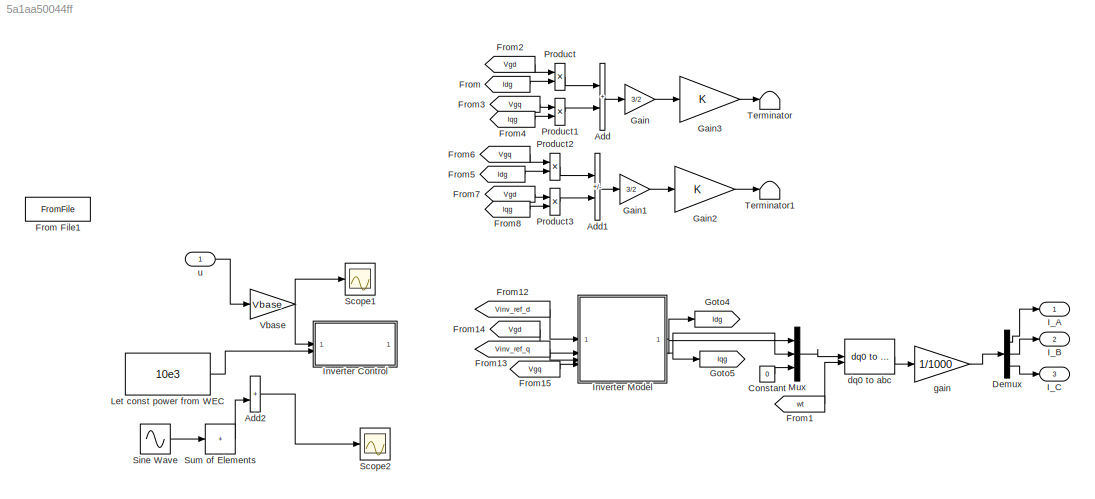
MODEL slx_5a1aa50044ff
KIND model
CONFIG AbsTol = auto
CONFIG EnableMultiTasking = off
CONFIG FixedStep = 50e-6
CONFIG InitFcn = load('Pgridwec.mat')\nLg=0.05;\nrg=0.01;\nkp_g=0.5*10.9;\nki_g=0.1*7.9e4;\nSbase=100e6;\nImax=1.5;\nVbase=132e3;\nIbase=5248.639;
CONFIG MaxStep = auto
CONFIG MinStep = auto
CONFIG RelTol = 1e-3
CONFIG SampleTimeConstraint = Unconstrained
CONFIG SolverName = ode4
CONFIG StartTime = 0.0
CONFIG StopTime = 20
BLOCK [Sum] Add
  IconShape = rectangular
BLOCK [Sum] Add1
  IconShape = rectangular
  Inputs = -+
BLOCK [Sum] Add2
  IconShape = rectangular
BLOCK [Constant] Constant
  Value = 0
BLOCK [Demux] Demux
  Outputs = 3
BLOCK [From] From
  GotoTag = Idg
  TagVisibility = global
BLOCK [FromFile] From File1
  Commented = on
  FileName = Pgridwec
  SampleTime = 0
BLOCK [From] From1
  GotoTag = wt
  TagVisibility = global
BLOCK [From] From12
  GotoTag = Vinv_ref_d
  TagVisibility = global
BLOCK [From] From13
  GotoTag = Vinv_ref_q
  TagVisibility = global
BLOCK [From] From14
  GotoTag = Vgd
  TagVisibility = global
BLOCK [From] From15
  GotoTag = Vgq
  TagVisibility = global
BLOCK [From] From2
  GotoTag = Vgd
  TagVisibility = global
BLOCK [From] From3
  GotoTag = Vgq
  TagVisibility = global
BLOCK [From] From4
  GotoTag = Iqg
  TagVisibility = global
BLOCK [From] From5
  GotoTag = Idg
  TagVisibility = global
BLOCK [From] From6
  GotoTag = Vgq
  TagVisibility = global
BLOCK [From] From7
  GotoTag = Vgd
  TagVisibility = global
BLOCK [From] From8
  GotoTag = Iqg
  TagVisibility = global
BLOCK [Gain] Gain
  Gain = 3/2
BLOCK [Gain] Gain1
  Gain = 3/2
BLOCK [Gain] Gain2
BLOCK [Gain] Gain3
BLOCK [Goto] Goto4
  GotoTag = Idg
  TagVisibility = global
BLOCK [Goto] Goto5
  GotoTag = Iqg
  TagVisibility = global
BLOCK [Outport] I_A
BLOCK [Outport] I_B
  Port = 2
BLOCK [Outport] I_C
  Port = 3
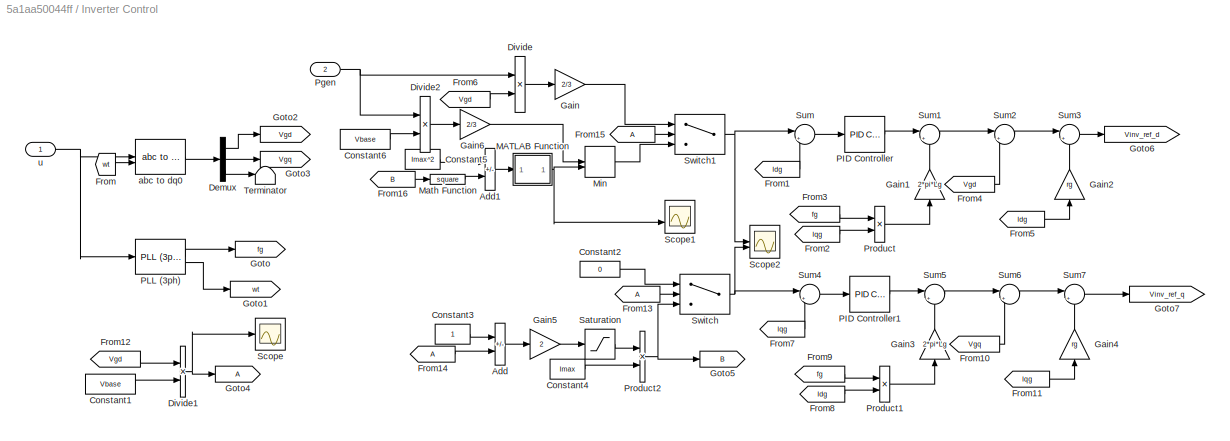
BLOCK [SubSystem] Inverter Control
BLOCK [Sum] Inverter Control/Add
  IconShape = rectangular
  Inputs = +-
BLOCK [Sum] Inverter Control/Add1
  IconShape = rectangular
  Inputs = +-
BLOCK [Constant] Inverter Control/Constant1
  Value = Vbase
BLOCK [Constant] Inverter Control/Constant2
  Value = 0
BLOCK [Constant] Inverter Control/Constant3
BLOCK [Constant] Inverter Control/Constant4
  Value = Imax
BLOCK [Constant] Inverter Control/Constant5
  Value = Imax^2
BLOCK [Constant] Inverter Control/Constant6
  Value = Vbase
BLOCK [Demux] Inverter Control/Demux
  Outputs = 3
BLOCK [Product] Inverter Control/Divide
  Inputs = */
BLOCK [Product] Inverter Control/Divide1
  Inputs = */
BLOCK [Product] Inverter Control/Divide2
  Inputs = */
BLOCK [From] Inverter Control/From
  GotoTag = wt
  TagVisibility = global
BLOCK [From] Inverter Control/From1
  GotoTag = Idg
  TagVisibility = global
BLOCK [From] Inverter Control/From10
  GotoTag = Vgq
  TagVisibility = global
BLOCK [From] Inverter Control/From11
  GotoTag = Iqg
  TagVisibility = global
BLOCK [From] Inverter Control/From12
  GotoTag = Vgd
  TagVisibility = global
BLOCK [From] Inverter Control/From13
BLOCK [From] Inverter Control/From14
BLOCK [From] Inverter Control/From15
BLOCK [From] Inverter Control/From16
  GotoTag = B
BLOCK [From] Inverter Control/From2
  GotoTag = Iqg
  TagVisibility = global
BLOCK [From] Inverter Control/From3
  GotoTag = fg
  TagVisibility = global
BLOCK [From] Inverter Control/From4
  GotoTag = Vgd
  TagVisibility = global
BLOCK [From] Inverter Control/From5
  GotoTag = Idg
  TagVisibility = global
BLOCK [From] Inverter Control/From6
  GotoTag = Vgd
  TagVisibility = global
BLOCK [From] Inverter Control/From7
  GotoTag = Iqg
  TagVisibility = global
BLOCK [From] Inverter Control/From8
  GotoTag = Idg
  TagVisibility = global
BLOCK [From] Inverter Control/From9
  GotoTag = fg
  TagVisibility = global
BLOCK [Gain] Inverter Control/Gain
  Gain = 2/3
BLOCK [Gain] Inverter Control/Gain1
  Gain = 2*pi*Lg
  NameLocation = right
BLOCK [Gain] Inverter Control/Gain2
  Gain = rg
  NameLocation = right
BLOCK [Gain] Inverter Control/Gain3
  Gain = 2*pi*Lg
  NameLocation = right
BLOCK [Gain] Inverter Control/Gain4
  Gain = rg
  NameLocation = right
BLOCK [Gain] Inverter Control/Gain5
  Gain = 2
BLOCK [Gain] Inverter Control/Gain6
  Gain = 2/3
BLOCK [Goto] Inverter Control/Goto
  GotoTag = fg
  TagVisibility = global
BLOCK [Goto] Inverter Control/Goto1
  GotoTag = wt
  TagVisibility = global
BLOCK [Goto] Inverter Control/Goto2
  GotoTag = Vgd
  TagVisibility = global
BLOCK [Goto] Inverter Control/Goto3
  GotoTag = Vgq
  TagVisibility = global
BLOCK [Goto] Inverter Control/Goto4
BLOCK [Goto] Inverter Control/Goto5
  GotoTag = B
BLOCK [Goto] Inverter Control/Goto6
  GotoTag = Vinv_ref_d
  TagVisibility = global
BLOCK [Goto] Inverter Control/Goto7
  GotoTag = Vinv_ref_q
  TagVisibility = global
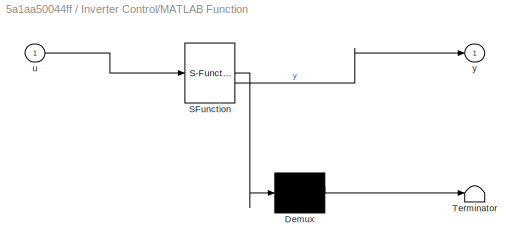
BLOCK [SubSystem] Inverter Control/MATLAB Function
  ErrorFcn = Stateflow.Translate.translate
  PermitHierarchicalResolution = ExplicitOnly
  SFBlockType = MATLAB Function
  TreatAsAtomicUnit = on
BLOCK [Demux] Inverter Control/MATLAB Function/ Demux 
  Outputs = 1
BLOCK [S-Function] Inverter Control/MATLAB Function/ SFunction 
  EnableBusSupport = on
  FunctionName = sf_sfun
  PortCounts = [1 2]
  SFcnIsStateOwnerBlock = off
  SFunctionDeploymentMode = off
  Tag = Stateflow S-Function 2
BLOCK [Terminator] Inverter Control/MATLAB Function/ Terminator 
BLOCK [Inport] Inverter Control/MATLAB Function/u
BLOCK [Outport] Inverter Control/MATLAB Function/y
BLOCK [Math] Inverter Control/Math Function
  Operator = square
BLOCK [MinMax] Inverter Control/Min
  Inputs = 2
BLOCK [Reference] Inverter Control/PID Controller  REF=slpidlib/PID Controller
  LibrarySourceBlock = simulink/Continuous/PID Controller
  SourceBlock = slpidlib/PID Controller
  SourceType = PID 1dof
BLOCK [Reference] Inverter Control/PID Controller1  REF=slpidlib/PID Controller
  LibrarySourceBlock = simulink/Continuous/PID Controller
  SourceBlock = slpidlib/PID Controller
  SourceType = PID 1dof
BLOCK [Reference] Inverter Control/PLL (3ph)  REF=spsPLL3phLib/PLL
(3ph)
  LibrarySourceBlock = sps_lib/Control/PLL\n(3ph)
  SourceBlock = spsPLL3phLib/PLL\n(3ph)
  SourceType = PLL (3ph)
BLOCK [Inport] Inverter Control/Pgen
  Port = 2
BLOCK [Product] Inverter Control/Product
BLOCK [Product] Inverter Control/Product1
BLOCK [Product] Inverter Control/Product2
BLOCK [Saturate] Inverter Control/Saturation
  LowerLimit = 0
  UpperLimit = 1
BLOCK [Scope] Inverter Control/Scope
  Floating = off
  NumInputPorts = 1
  ScopeSpecificationString = Simulink.scopes.TimeScopeBlockCfg('CurrentConfiguration', extmgr.ConfigurationSet(extmgr.Configuration('Core','General UI',true),extmgr.Configuration('Core','Source UI',true),extmgr.Configuration('Sources','WiredSimulink',true,'DataLoggingVariableName','ScopeData5'),extmgr.Configuration('Visuals','Time Domain',true,'SerializedDisplays',{struct('MinYLimReal','0.325','MaxYLimReal','1.075','YLabelRea...<+1390ch>
BLOCK [Scope] Inverter Control/Scope1
  Floating = off
  NumInputPorts = 2
  ScopeSpecificationString = Simulink.scopes.TimeScopeBlockCfg('CurrentConfiguration', extmgr.ConfigurationSet(extmgr.Configuration('Core','General UI',true),extmgr.Configuration('Core','Source UI',true),extmgr.Configuration('Sources','WiredSimulink',true,'DataLoggingVariableName','ScopeData7'),extmgr.Configuration('Visuals','Time Domain',true,'SerializedDisplays',{struct('MinYLimReal','-0.19959','MaxYLimReal','1.79629','YLab...<+1416ch>
BLOCK [Scope] Inverter Control/Scope2
  Floating = off
  NumInputPorts = 2
  ScopeSpecificationString = Simulink.scopes.TimeScopeBlockCfg('CurrentConfiguration', extmgr.ConfigurationSet(extmgr.Configuration('Core','General UI',true),extmgr.Configuration('Core','Source UI',true),extmgr.Configuration('Sources','WiredSimulink',true,'DataLoggingVariableName','ScopeData8'),extmgr.Configuration('Visuals','Time Domain',true,'SerializedDisplays',{struct('MinYLimReal','-0.20625','MaxYLimReal','1.85625','YLab...<+1416ch>
BLOCK [Sum] Inverter Control/Sum
  Inputs = |+-
BLOCK [Sum] Inverter Control/Sum1
  Inputs = |++
BLOCK [Sum] Inverter Control/Sum2
  Inputs = |++
BLOCK [Sum] Inverter Control/Sum3
  Inputs = |++
BLOCK [Sum] Inverter Control/Sum4
  Inputs = |+-
BLOCK [Sum] Inverter Control/Sum5
  Inputs = |++
BLOCK [Sum] Inverter Control/Sum6
  Inputs = |++
BLOCK [Sum] Inverter Control/Sum7
  Inputs = |++
BLOCK [Switch] Inverter Control/Switch
  Criteria = u2 > Threshold
  InputSameDT = off
  SaturateOnIntegerOverflow = off
  Threshold = 0.9
BLOCK [Switch] Inverter Control/Switch1
  Criteria = u2 > Threshold
  InputSameDT = off
  SaturateOnIntegerOverflow = off
  Threshold = 0.9
BLOCK [Terminator] Inverter Control/Terminator
BLOCK [Reference] Inverter Control/abc to dq0  REF=spsabctodq0Lib/abc to dq0
  LibrarySourceBlock = sps_lib/Control/abc to dq0
  SourceBlock = spsabctodq0Lib/abc to dq0
  SourceType = abc to dq0 Transformation
BLOCK [Inport] Inverter Control/u
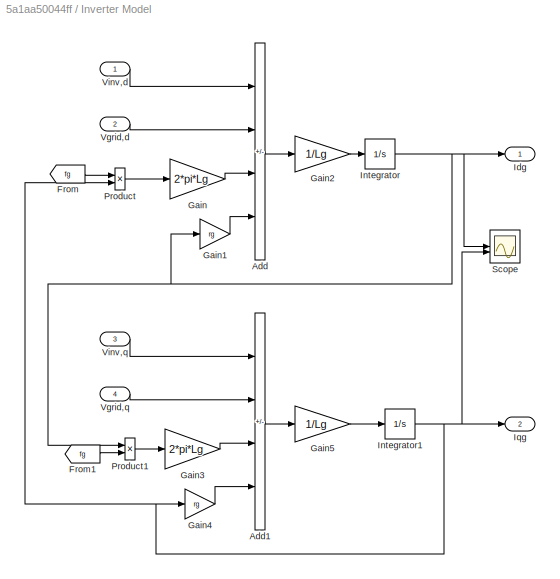
BLOCK [SubSystem] Inverter Model
BLOCK [Sum] Inverter Model/Add
  IconShape = rectangular
  Inputs = +---
BLOCK [Sum] Inverter Model/Add1
  IconShape = rectangular
  Inputs = +-+-
BLOCK [From] Inverter Model/From
  GotoTag = fg
  TagVisibility = global
BLOCK [From] Inverter Model/From1
  GotoTag = fg
  TagVisibility = global
BLOCK [Gain] Inverter Model/Gain
  Gain = 2*pi*Lg
BLOCK [Gain] Inverter Model/Gain1
  Gain = rg
BLOCK [Gain] Inverter Model/Gain2
  Gain = 1/Lg
BLOCK [Gain] Inverter Model/Gain3
  Gain = 2*pi*Lg
BLOCK [Gain] Inverter Model/Gain4
  Gain = rg
BLOCK [Gain] Inverter Model/Gain5
  Gain = 1/Lg
BLOCK [Outport] Inverter Model/Idg
BLOCK [Integrator] Inverter Model/Integrator
BLOCK [Integrator] Inverter Model/Integrator1
  InitialCondition = 0.015
BLOCK [Outport] Inverter Model/Iqg
  Port = 2
BLOCK [Product] Inverter Model/Product
BLOCK [Product] Inverter Model/Product1
BLOCK [Scope] Inverter Model/Scope
  Floating = off
  NumInputPorts = 2
  ScopeSpecificationString = Simulink.scopes.TimeScopeBlockCfg('CurrentConfiguration', extmgr.ConfigurationSet(extmgr.Configuration('Core','General UI',true),extmgr.Configuration('Core','Source UI',true),extmgr.Configuration('Sources','WiredSimulink',true,'DataLoggingVariableName','ScopeData3'),extmgr.Configuration('Visuals','Time Domain',true,'SerializedDisplays',{struct('MinYLimReal','-261.88407','MaxYLimReal','534.15379','...<+1553ch>
BLOCK [Inport] Inverter Model/Vgrid,d
  Port = 2
BLOCK [Inport] Inverter Model/Vgrid,q
  Port = 4
BLOCK [Inport] Inverter Model/Vinv,d
BLOCK [Inport] Inverter Model/Vinv,q
  Port = 3
BLOCK [Constant] Let const power from WEC
  Value = 10e3
BLOCK [Mux] Mux
  DisplayOption = bar
  Inputs = 3
BLOCK [Product] Product
BLOCK [Product] Product1
BLOCK [Product] Product2
BLOCK [Product] Product3
BLOCK [Scope] Scope1
  Floating = off
  NumInputPorts = 1
  ScopeSpecificationString = Simulink.scopes.TimeScopeBlockCfg('CurrentConfiguration', extmgr.ConfigurationSet(extmgr.Configuration('Core','General UI',true),extmgr.Configuration('Core','Source UI',true),extmgr.Configuration('Sources','WiredSimulink',true,'DataLoggingVariableName','ScopeData2'),extmgr.Configuration('Visuals','Time Domain',true,'SerializedDisplays',{struct('MinYLimReal','-1.00000','MaxYLimReal','1.00000','YLab...<+1415ch>
BLOCK [Scope] Scope2
  Floating = off
  NumInputPorts = 1
  ScopeSpecificationString = Simulink.scopes.TimeScopeBlockCfg('CurrentConfiguration', extmgr.ConfigurationSet(extmgr.Configuration('Core','General UI',true),extmgr.Configuration('Core','Source UI',true),extmgr.Configuration('Sources','WiredSimulink',true,'DataLoggingVariableName','ScopeData1'),extmgr.Configuration('Visuals','Time Domain',true,'SerializedDisplays',{struct('MinYLimReal','9999.96966','MaxYLimReal','10000.02965'...<+1438ch>
BLOCK [Sin] Sine Wave
  Amplitude = 0
  Frequency = [2*pi/3 2*pi/5 2*pi/7]
  Phase = [0,-2*pi/3, 2*pi/3]
  SampleTime = 0
BLOCK [Sum] Sum of Elements
  IconShape = rectangular
  Inputs = +
BLOCK [Terminator] Terminator
BLOCK [Terminator] Terminator1
BLOCK [Gain] Vbase
  Gain = Vbase
BLOCK [Reference] dq0 to abc  REF=spsdq0toabcLib/dq0 to abc
  LibrarySourceBlock = sps_lib/Control/dq0 to abc
  SourceBlock = spsdq0toabcLib/dq0 to abc
  SourceType = dq0 to abc Transformation
BLOCK [Gain] gain
  Gain = 1/1000
BLOCK [Inport] u
LINE Add1:1 -> Gain1:1
LINE Add2:1 -> Scope2:1
LINE Add:1 -> Gain:1
LINE Constant:1 -> Mux:3
LINE Demux:1 -> I_A:1
LINE Demux:2 -> I_B:1
LINE Demux:3 -> I_C:1
LINE From12:1 -> Inverter Model:1
LINE From13:1 -> Inverter Model:3
LINE From14:1 -> Inverter Model:2
LINE From15:1 -> Inverter Model:4
LINE From1:1 -> dq0 to abc:2
LINE From2:1 -> Product:1
LINE From3:1 -> Product1:1
LINE From4:1 -> Product1:2
LINE From5:1 -> Product2:2
LINE From6:1 -> Product2:1
LINE From7:1 -> Product3:1
LINE From8:1 -> Product3:2
LINE From:1 -> Product:2
LINE Gain1:1 -> Gain2:1
LINE Gain2:1 -> Terminator1:1
LINE Gain3:1 -> Terminator:1
LINE Gain:1 -> Gain3:1
LINE Inverter Control/Add1:1 -> Inverter Control/MATLAB Function:1
LINE Inverter Control/Add:1 -> Inverter Control/Gain5:1
LINE Inverter Control/Constant1:1 -> Inverter Control/Divide1:2
LINE Inverter Control/Constant2:1 -> Inverter Control/Switch:1
LINE Inverter Control/Constant3:1 -> Inverter Control/Add:1
LINE Inverter Control/Constant4:1 -> Inverter Control/Product2:2
LINE Inverter Control/Constant5:1 -> Inverter Control/Add1:1
LINE Inverter Control/Constant6:1 -> Inverter Control/Divide2:2
LINE Inverter Control/Demux:1 -> Inverter Control/Goto2:1
LINE Inverter Control/Demux:2 -> Inverter Control/Goto3:1
LINE Inverter Control/Demux:3 -> Inverter Control/Terminator:1
NET Inverter Control/Divide1:1 -> Inverter Control/Goto4:1, Inverter Control/Scope:1
LINE Inverter Control/Divide2:1 -> Inverter Control/Gain6:1
LINE Inverter Control/Divide:1 -> Inverter Control/Gain:1
LINE Inverter Control/From10:1 -> Inverter Control/Sum6:2
LINE Inverter Control/From11:1 -> Inverter Control/Gain4:1
LINE Inverter Control/From12:1 -> Inverter Control/Divide1:1
LINE Inverter Control/From13:1 -> Inverter Control/Switch:2
LINE Inverter Control/From14:1 -> Inverter Control/Add:2
LINE Inverter Control/From15:1 -> Inverter Control/Switch1:2
LINE Inverter Control/From16:1 -> Inverter Control/Math Function:1
LINE Inverter Control/From1:1 -> Inverter Control/Sum:2
LINE Inverter Control/From2:1 -> Inverter Control/Product:2
LINE Inverter Control/From3:1 -> Inverter Control/Product:1
LINE Inverter Control/From4:1 -> Inverter Control/Sum2:2
LINE Inverter Control/From5:1 -> Inverter Control/Gain2:1
LINE Inverter Control/From6:1 -> Inverter Control/Divide:2
LINE Inverter Control/From7:1 -> Inverter Control/Sum4:2
LINE Inverter Control/From8:1 -> Inverter Control/Product1:2
LINE Inverter Control/From9:1 -> Inverter Control/Product1:1
LINE Inverter Control/From:1 -> Inverter Control/abc to dq0:2
LINE Inverter Control/Gain1:1 -> Inverter Control/Sum1:2
LINE Inverter Control/Gain2:1 -> Inverter Control/Sum3:2
LINE Inverter Control/Gain3:1 -> Inverter Control/Sum5:2
LINE Inverter Control/Gain4:1 -> Inverter Control/Sum7:2
LINE Inverter Control/Gain5:1 -> Inverter Control/Saturation:1
LINE Inverter Control/Gain6:1 -> Inverter Control/Min:1
LINE Inverter Control/Gain:1 -> Inverter Control/Switch1:1
NET Inverter Control/MATLAB Function:1 -> Inverter Control/Min:2, Inverter Control/Scope1:2
LINE Inverter Control/Math Function:1 -> Inverter Control/Add1:2
LINE Inverter Control/Min:1 -> Inverter Control/Switch1:3
LINE Inverter Control/PID Controller1:1 -> Inverter Control/Sum5:1
LINE Inverter Control/PID Controller:1 -> Inverter Control/Sum1:1
LINE Inverter Control/PLL (3ph):1 -> Inverter Control/Goto:1
LINE Inverter Control/PLL (3ph):2 -> Inverter Control/Goto1:1
NET Inverter Control/Pgen:1 -> Inverter Control/Divide2:1, Inverter Control/Divide:1
LINE Inverter Control/Product1:1 -> Inverter Control/Gain3:1
NET Inverter Control/Product2:1 -> Inverter Control/Goto5:1, Inverter Control/Switch:3
LINE Inverter Control/Product:1 -> Inverter Control/Gain1:1
LINE Inverter Control/Saturation:1 -> Inverter Control/Product2:1
LINE Inverter Control/Sum1:1 -> Inverter Control/Sum2:1
LINE Inverter Control/Sum2:1 -> Inverter Control/Sum3:1
LINE Inverter Control/Sum3:1 -> Inverter Control/Goto6:1
LINE Inverter Control/Sum4:1 -> Inverter Control/PID Controller1:1
LINE Inverter Control/Sum5:1 -> Inverter Control/Sum6:1
LINE Inverter Control/Sum6:1 -> Inverter Control/Sum7:1
LINE Inverter Control/Sum7:1 -> Inverter Control/Goto7:1
LINE Inverter Control/Sum:1 -> Inverter Control/PID Controller:1
NET Inverter Control/Switch1:1 -> Inverter Control/Scope2:1, Inverter Control/Sum:1
NET Inverter Control/Switch:1 -> Inverter Control/Scope2:2, Inverter Control/Sum4:1
LINE Inverter Control/abc to dq0:1 -> Inverter Control/Demux:1
NET Inverter Control/u:1 -> Inverter Control/PLL (3ph):1, Inverter Control/abc to dq0:1
LINE Inverter Model/Add1:1 -> Inverter Model/Gain5:1
LINE Inverter Model/Add:1 -> Inverter Model/Gain2:1
LINE Inverter Model/From1:1 -> Inverter Model/Product1:2
LINE Inverter Model/From:1 -> Inverter Model/Product:1
LINE Inverter Model/Gain1:1 -> Inverter Model/Add:4
LINE Inverter Model/Gain2:1 -> Inverter Model/Integrator:1
LINE Inverter Model/Gain3:1 -> Inverter Model/Add1:3
LINE Inverter Model/Gain4:1 -> Inverter Model/Add1:4
LINE Inverter Model/Gain5:1 -> Inverter Model/Integrator1:1
LINE Inverter Model/Gain:1 -> Inverter Model/Add:3
NET Inverter Model/Integrator1:1 -> Inverter Model/Gain4:1, Inverter Model/Iqg:1, Inverter Model/Product:2, Inverter Model/Scope:2
NET Inverter Model/Integrator:1 -> Inverter Model/Gain1:1, Inverter Model/Idg:1, Inverter Model/Product1:1, Inverter Model/Scope:1
LINE Inverter Model/Product1:1 -> Inverter Model/Gain3:1
LINE Inverter Model/Product:1 -> Inverter Model/Gain:1
LINE Inverter Model/Vgrid,d:1 -> Inverter Model/Add:2
LINE Inverter Model/Vgrid,q:1 -> Inverter Model/Add1:2
LINE Inverter Model/Vinv,d:1 -> Inverter Model/Add:1
LINE Inverter Model/Vinv,q:1 -> Inverter Model/Add1:1
NET Inverter Model:1 -> Goto4:1, Mux:1
NET Inverter Model:2 -> Goto5:1, Mux:2
LINE Let const power from WEC:1 -> Inverter Control:2
LINE Mux:1 -> dq0 to abc:1
LINE Product1:1 -> Add:2
LINE Product2:1 -> Add1:1
LINE Product3:1 -> Add1:2
LINE Product:1 -> Add:1
LINE Sine Wave:1 -> Sum of Elements:1
LINE Sum of Elements:1 -> Add2:2
NET Vbase:1 -> Inverter Control:1, Scope1:1
LINE dq0 to abc:1 -> gain:1
LINE gain:1 -> Demux:1
LINE u:1 -> Vbase:1
note: NET lines group one-source signal fan-out (src -> all destinations, sorted); 1:1 wires keep LINE
CHART Inverter Control/MATLAB Function states=1 transitions=1
  STATE_LABEL 'eML_blk_kernel()'
  STATE_LABEL 'SCRIPT:\nfunction y = fcn(u)\n\ny = sqrt(u);\n'
CHART  states=0 transitions=0
